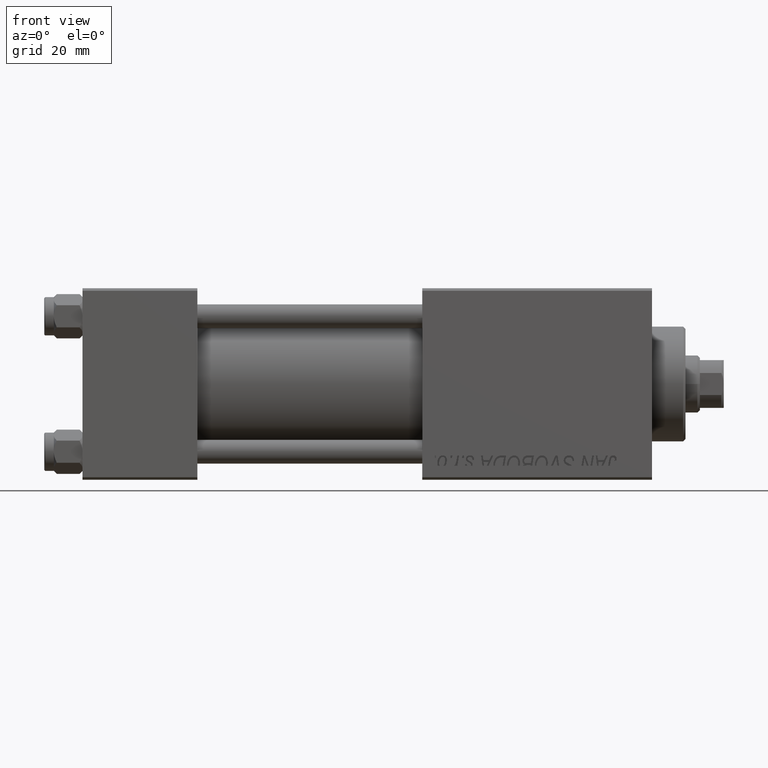
[diagram: clean part render]
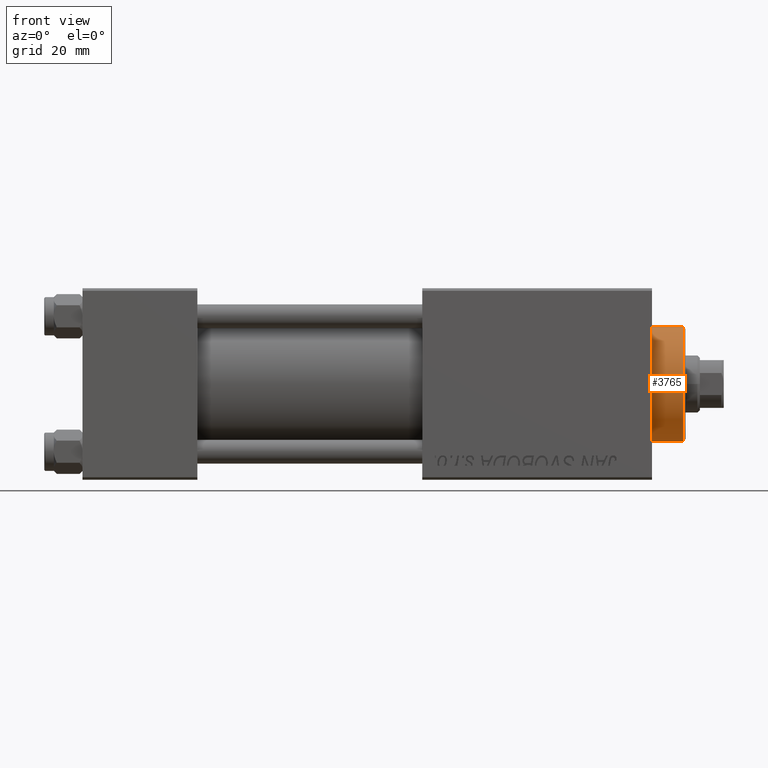
[diagram: same view with one face highlighted and labeled with its STEP entity id]
A machine part, front view. The second image highlights one B-rep face of the part: STEP entity #3765.
In plain terms, the highlighted cylindrical surface (partial cylindrical patch) has radius 12 mm, axis along (-1, -0, -0).
Its self-contained STEP definition (entity closure, byte-faithful):
#243 = VECTOR ( 'NONE', #34956, 1000.000000000000000 ) ;
#315 = CARTESIAN_POINT ( 'NONE',  ( -12.00000000000000178, 0.000000000000000000, 35.70000000000000284 ) ) ;
#684 = FACE_OUTER_BOUND ( 'NONE', #32451, .T. ) ;
#2246 = AXIS2_PLACEMENT_3D ( 'NONE', #39324, #8079, #16189 ) ;
#3765 = ADVANCED_FACE ( 'NONE', ( #684 ), #19506, .T. ) ;
#5871 = ORIENTED_EDGE ( 'NONE', *, *, #28630, .T. ) ;
#6760 = CARTESIAN_POINT ( 'NONE',  ( -12.00000000000000178, 0.000000000000000000, 28.69999999999999929 ) ) ;
#8079 = DIRECTION ( 'NONE',  ( -0.000000000000000000, -0.000000000000000000, -1.000000000000000000 ) ) ;
#10042 = EDGE_CURVE ( 'NONE', #46225, #22307, #11763, .T. ) ;
#11763 = LINE ( 'NONE', #315, #30011 ) ;
#11856 = AXIS2_PLACEMENT_3D ( 'NONE', #19119, #18621, #34133 ) ;
#15570 = DIRECTION ( 'NONE',  ( -0.000000000000000000, -0.000000000000000000, -1.000000000000000000 ) ) ;
#16121 = CARTESIAN_POINT ( 'NONE',  ( 12.00000000000000178, 1.469576158976824144E-15, 35.70000000000000284 ) ) ;
#16189 = DIRECTION ( 'NONE',  ( -1.000000000000000000, 0.000000000000000000, 0.000000000000000000 ) ) ;
#17204 = EDGE_CURVE ( 'NONE', #37893, #26267, #23004, .T. ) ;
#18621 = DIRECTION ( 'NONE',  ( 0.000000000000000000, 0.000000000000000000, 1.000000000000000000 ) ) ;
#19119 = CARTESIAN_POINT ( 'NONE',  ( 0.000000000000000000, 0.000000000000000000, 28.69999999999999929 ) ) ;
#19389 = DIRECTION ( 'NONE',  ( 1.000000000000000000, 0.000000000000000000, 0.000000000000000000 ) ) ;
#19506 = CYLINDRICAL_SURFACE ( 'NONE', #2246, 12.00000000000000178 ) ;
#22307 = VERTEX_POINT ( 'NONE', #6760 ) ;
#23004 = LINE ( 'NONE', #16121, #243 ) ;
#26267 = VERTEX_POINT ( 'NONE', #46185 ) ;
#27008 = DIRECTION ( 'NONE',  ( 0.000000000000000000, 0.000000000000000000, -1.000000000000000000 ) ) ;
#27666 = EDGE_CURVE ( 'NONE', #22307, #26267, #35401, .T. ) ;
#27724 = ORIENTED_EDGE ( 'NONE', *, *, #17204, .F. ) ;
#28630 = EDGE_CURVE ( 'NONE', #37893, #46225, #37079, .T. ) ;
#30011 = VECTOR ( 'NONE', #15570, 1000.000000000000000 ) ;
#32451 = EDGE_LOOP ( 'NONE', ( #27724, #5871, #38457, #47387 ) ) ;
#34133 = DIRECTION ( 'NONE',  ( 1.000000000000000000, 0.000000000000000000, 0.000000000000000000 ) ) ;
#34643 = AXIS2_PLACEMENT_3D ( 'NONE', #49397, #27008, #19389 ) ;
#34956 = DIRECTION ( 'NONE',  ( -0.000000000000000000, -0.000000000000000000, -1.000000000000000000 ) ) ;
#35401 = CIRCLE ( 'NONE', #11856, 12.00000000000000178 ) ;
#37079 = CIRCLE ( 'NONE', #34643, 12.00000000000000178 ) ;
#37893 = VERTEX_POINT ( 'NONE', #50300 ) ;
#38457 = ORIENTED_EDGE ( 'NONE', *, *, #10042, .T. ) ;
#39324 = CARTESIAN_POINT ( 'NONE',  ( 0.000000000000000000, 0.000000000000000000, 35.70000000000000284 ) ) ;
#45379 = CARTESIAN_POINT ( 'NONE',  ( -12.00000000000000178, 0.000000000000000000, 35.19999999999999574 ) ) ;
#46185 = CARTESIAN_POINT ( 'NONE',  ( 12.00000000000000178, 0.000000000000000000, 28.69999999999999929 ) ) ;
#46225 = VERTEX_POINT ( 'NONE', #45379 ) ;
#47387 = ORIENTED_EDGE ( 'NONE', *, *, #27666, .T. ) ;
#49397 = CARTESIAN_POINT ( 'NONE',  ( 0.000000000000000000, 0.000000000000000000, 35.19999999999999574 ) ) ;
#50300 = CARTESIAN_POINT ( 'NONE',  ( 12.00000000000000178, 1.469576158976824144E-15, 35.19999999999999574 ) ) ;